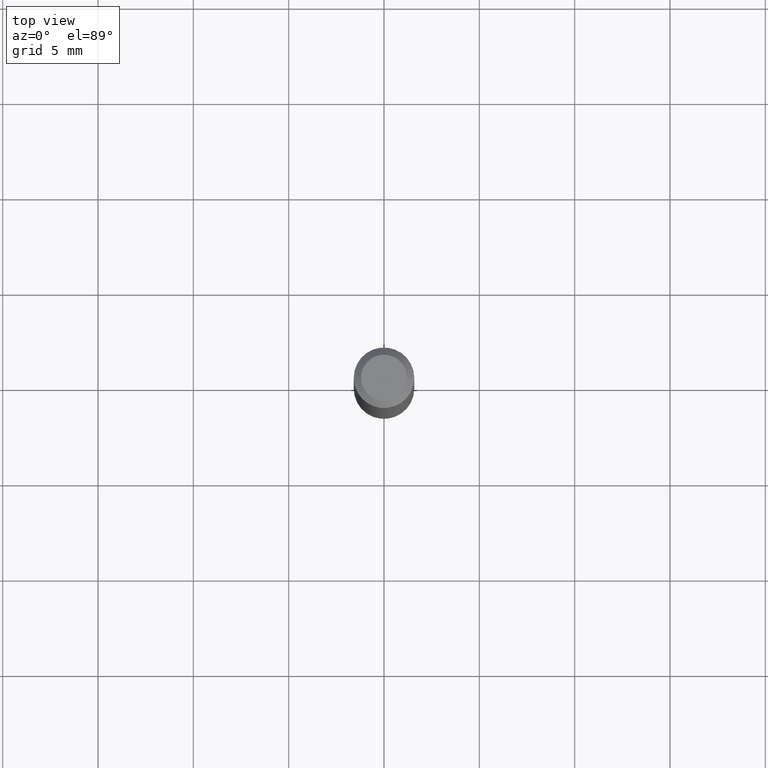
[diagram: clean part render]
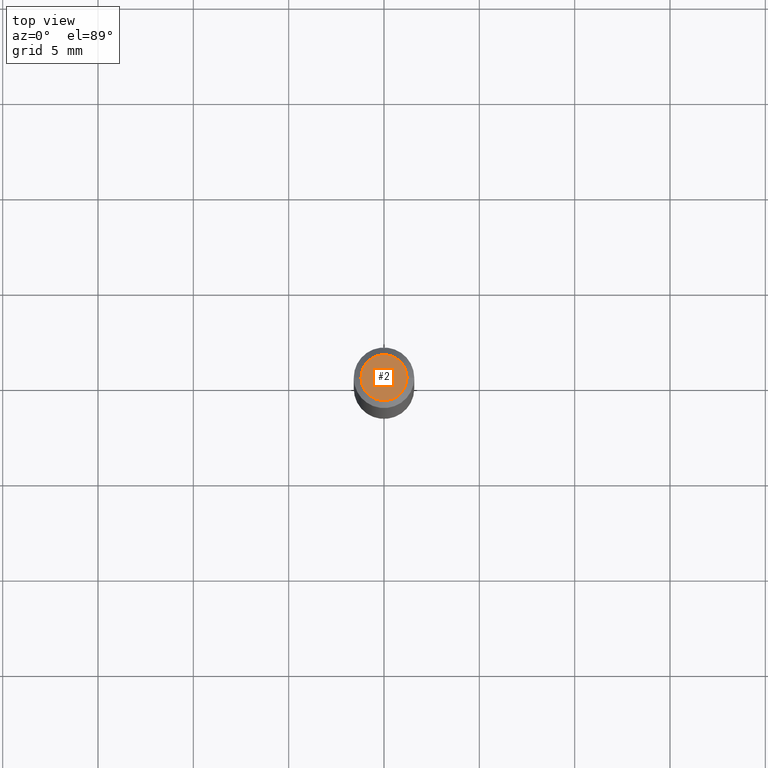
[diagram: same view with one face highlighted and labeled with its STEP entity id]
A machine part, top view. The second image highlights one B-rep face of the part: STEP entity #2.
In plain terms, the highlighted planar face has unit normal (0, -0, -1).
Its self-contained STEP definition (entity closure, byte-faithful):
#2 = ADVANCED_FACE ( 'NONE', ( #409 ), #168, .F. ) ;
#7 = CARTESIAN_POINT ( 'NONE',  ( 3.316907271900976096E-16, 0.04749999999999999362, -2.653275547260257586E-16 ) ) ;
#12 = CARTESIAN_POINT ( 'NONE',  ( 0.04749999999999999362, -4.035134999187581581E-16, -1.989643822619502098E-16 ) ) ;
#19 = CARTESIAN_POINT ( 'NONE',  ( 4.865611903635008365E-45, -6.946804277620623666E-31, -1.989643822619527736E-16 ) ) ;
#26 = VERTEX_POINT ( 'NONE', #373 ) ;
#54 = EDGE_CURVE ( 'NONE', #287, #26, #359, .T. ) ;
#124 = AXIS2_PLACEMENT_3D ( 'NONE', #19, #416, #253 ) ;
#158 = DIRECTION ( 'NONE',  ( -2.445468806185136597E-29, 3.491481338843145583E-15, 1.000000000000000000 ) ) ;
#168 = PLANE ( 'NONE',  #374 ) ;
#213 = EDGE_LOOP ( 'NONE', ( #425, #319 ) ) ;
#227 = CARTESIAN_POINT ( 'NONE',  ( 4.865611903635008365E-45, -6.946804277620623666E-31, -1.989643822619527736E-16 ) ) ;
#232 = EDGE_CURVE ( 'NONE', #26, #287, #329, .T. ) ;
#253 = DIRECTION ( 'NONE',  ( 1.000000000000000000, -6.982962677686267499E-15, 4.852736867747366768E-29 ) ) ;
#287 = VERTEX_POINT ( 'NONE', #12 ) ;
#307 = DIRECTION ( 'NONE',  ( 1.000000000000000000, -6.982962677686267499E-15, 4.852736867747366768E-29 ) ) ;
#314 = DIRECTION ( 'NONE',  ( 2.438088387897960049E-29, -3.491481338843145188E-15, -1.000000000000000000 ) ) ;
#319 = ORIENTED_EDGE ( 'NONE', *, *, #54, .T. ) ;
#322 = AXIS2_PLACEMENT_3D ( 'NONE', #227, #158, #307 ) ;
#329 = CIRCLE ( 'NONE', #124, 0.04749999999999999362 ) ;
#346 = DIRECTION ( 'NONE',  ( -1.000000000000000000, 6.982962677686265922E-15, -4.876176775795935793E-29 ) ) ;
#359 = CIRCLE ( 'NONE', #322, 0.04749999999999999362 ) ;
#373 = CARTESIAN_POINT ( 'NONE',  ( -0.04749999999999999362, 3.578768372314206562E-16, -1.989643822619551895E-16 ) ) ;
#374 = AXIS2_PLACEMENT_3D ( 'NONE', #7, #314, #346 ) ;
#409 = FACE_OUTER_BOUND ( 'NONE', #213, .T. ) ;
#416 = DIRECTION ( 'NONE',  ( -2.445468806185136597E-29, 3.491481338843145583E-15, 1.000000000000000000 ) ) ;
#425 = ORIENTED_EDGE ( 'NONE', *, *, #232, .T. ) ;